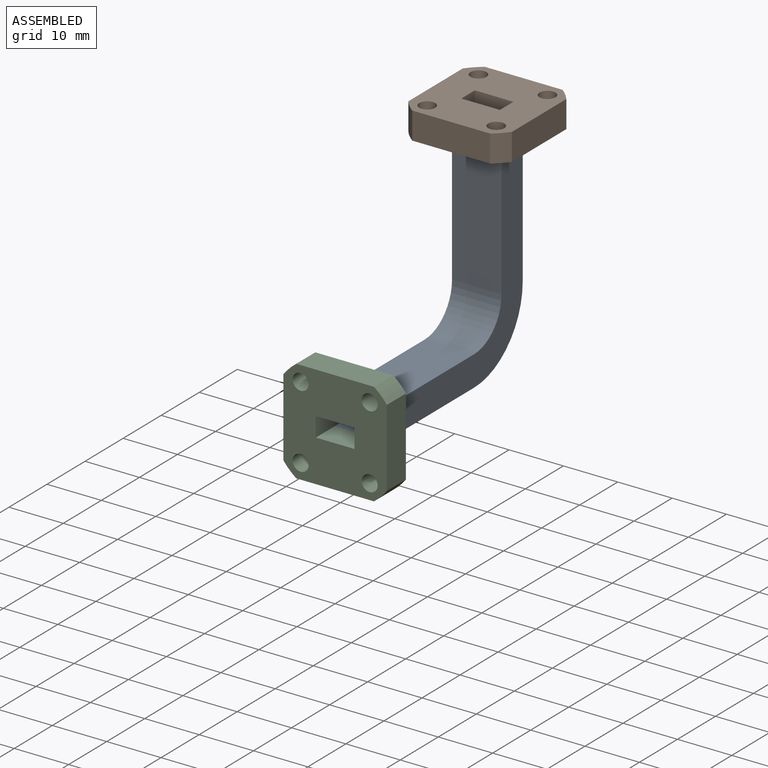
[diagram: assembled view]
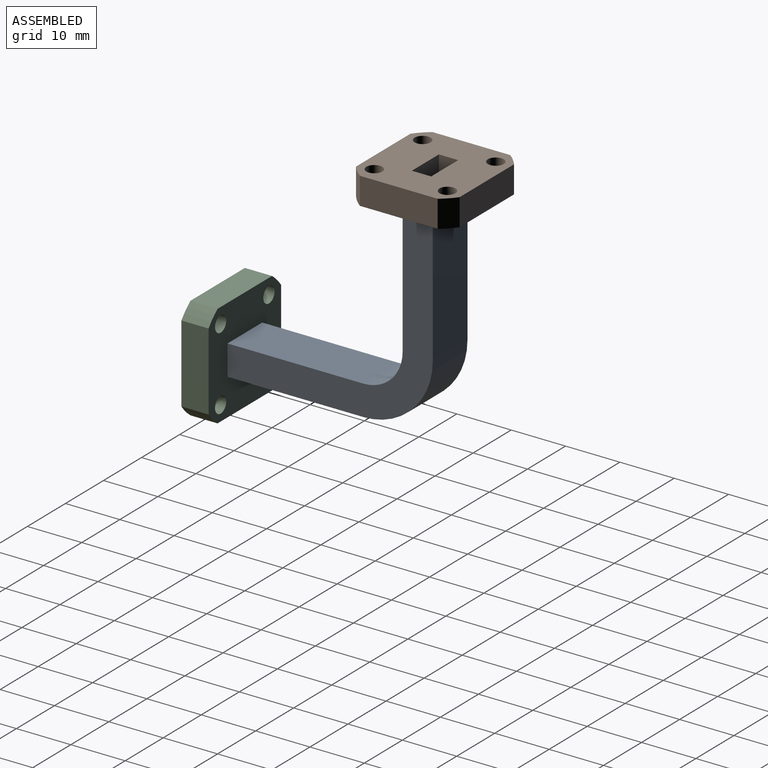
[diagram: assembled view, second angle]
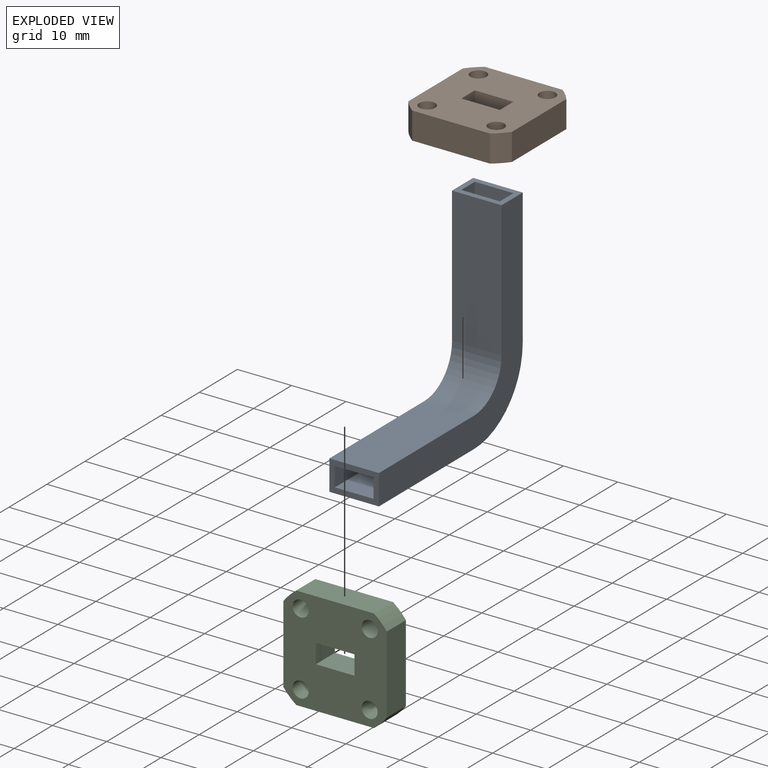
[diagram: exploded view]
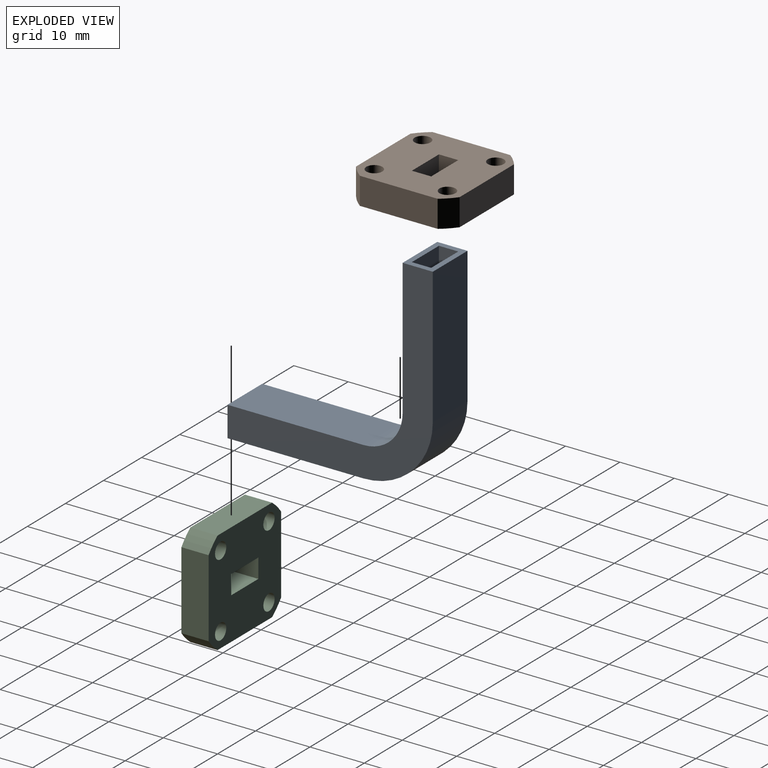
[diagram: exploded view, second angle]
ASSEMBLY  parts=3 mates=6
PART A: 18 faces, bbox 9.1x37.8x37.8 mm
  f0: plane 25x7.11mm, normal (0,0,1), area 177.8mm2, adj f2,f4,f6,f8
  f1: plane 25x7.11mm, normal (0,0,-1), area 177.8mm2, adj f3,f4,f6,f8
  f2: cylinder r=11.78mm len=11.78mm, axis (1,0,0), area 131.6mm2, adj f0,f4,f5,f6
  f3: cylinder r=8.22mm len=8.22mm, axis (1,0,0), area 91.9mm2, adj f1,f4,f6,f7
  f4: plane 36.78x36.78mm, normal (1,0,0), area 233.7mm2, adj f0,f1,f2,f3,f5,f7,f8,f9
  f5: plane 25x7.11mm, normal (0,-1,0), area 177.8mm2, adj f2,f4,f6,f9
  f6: plane 36.78x36.78mm, normal (-1,0,0), area 233.7mm2, adj f0,f1,f2,f3,f5,f7,f8,f9
  f7: plane 25x7.11mm, normal (0,1,0), area 177.8mm2, adj f3,f4,f6,f9
  f8: plane 9.11x5.56mm, normal (0,-1,0), area 25.3mm2, adj f0,f1,f4,f6,f10,f11,f12,f13
  f9: plane 9.11x5.56mm, normal (0,0,1), area 25.3mm2, adj f4,f5,f6,f7,f11,f13,f16,f17
  f10: plane 25x9.11mm, normal (0,0,1), area 227.8mm2, adj f8,f11,f13,f14
  f11: plane 37.78x37.78mm, normal (1,0,0), area 365.1mm2, adj f8,f9,f10,f12,f14,f15,f16,f17
  f12: plane 25x9.11mm, normal (0,0,-1), area 227.8mm2, adj f8,f11,f13,f15
  f13: plane 37.78x37.78mm, normal (-1,0,0), area 365.1mm2, adj f8,f9,f10,f12,f14,f15,f16,f17
  f14: cylinder r=7.22mm len=9.11mm, axis (1,0,0), area 103.4mm2, adj f10,f11,f13,f16
  f15: cylinder r=12.78mm len=12.78mm, axis (1,0,0), area 182.9mm2, adj f11,f12,f13,f17
  f16: plane 25x9.11mm, normal (0,-1,0), area 227.8mm2, adj f9,f11,f13,f14
  f17: plane 25x9.11mm, normal (0,1,0), area 227.8mm2, adj f9,f11,f13,f15
PART B: 18 faces, bbox 19.1x5x19.1 mm
  f0: plane 14.31x5mm, normal (0,0,-1), area 71.5mm2, adj f1,f15,f16,f17
  f1: cylinder r=11.91mm len=5mm, axis (0,-1,0), area 16.8mm2, adj f0,f2,f16,f17
  f2: plane 14.31x5mm, normal (1,0,0), area 71.5mm2, adj f1,f3,f16,f17
  f3: cylinder r=11.91mm len=5mm, axis (0,-1,0), area 16.8mm2, adj f2,f4,f16,f17
  f4: plane 14.31x5mm, normal (0,0,1), area 71.5mm2, adj f3,f5,f16,f17
  f5: cylinder r=11.91mm len=5mm, axis (0,-1,0), area 16.8mm2, adj f4,f6,f16,f17
  f6: plane 14.31x5mm, normal (-1,0,0), area 71.5mm2, adj f5,f15,f16,f17
  f7: plane 5x3.56mm, normal (-1,0,0), area 17.8mm2, adj f8,f14,f16,f17
  f8: plane 7.11x5mm, normal (0,0,1), area 35.6mm2, adj f7,f9,f16,f17
  f9: plane 5x3.56mm, normal (1,0,0), area 17.8mm2, adj f8,f14,f16,f17
  f10: cylinder r=1.47mm len=5mm, axis (0,-1,0), area 46.3mm2, adj f16,f17
  f11: cylinder r=1.47mm len=5mm, axis (0,-1,0), area 46.3mm2, adj f16,f17
  f12: cylinder r=1.47mm len=5mm, axis (0,-1,0), area 46.3mm2, adj f16,f17
  f13: cylinder r=1.47mm len=5mm, axis (0,-1,0), area 46.3mm2, adj f16,f17
  f14: plane 7.11x5mm, normal (0,0,-1), area 35.6mm2, adj f7,f9,f16,f17
  f15: cylinder r=11.91mm len=5mm, axis (0,-1,0), area 16.8mm2, adj f0,f6,f16,f17
  f16: plane 19.05x19.05mm, normal (0,1,0), area 300.1mm2, adj f0,f1,f2,f3,f4,f5,f6,f7
  f17: plane 19.05x19.05mm, normal (0,-1,0), area 300.1mm2, adj f0,f1,f2,f3,f4,f5,f6,f7
PART C: same geometry as B
PLACE A t=(-5.56,0.13,22.43)mm
PLACE B rot(axis=(1,0,0),90deg) t=(-5.56,35.13,57.43)mm
PLACE C t=(-5.56,-4.87,22.43)mm
MATE planar A.f0 <-> C.f8  axis (0,0,1) through (-5.56,0.13,20.65)mm
MATE planar A.f8 <-> C.f15  axis (0,-1,0) through (-9.12,0.13,24.21)mm
MATE planar A.f6 <-> B.f7  axis (-1,0,0) through (-2,25.71,31.84)mm
MATE planar A.f6 <-> C.f7  axis (-1,0,0) through (-2,25.71,31.84)mm
MATE planar A.f5 <-> B.f8  axis (0,-1,0) through (-5.56,36.9,57.43)mm
MATE planar B.f17 <-> A.f9  axis (0,0,-1) through (-9.12,33.35,57.43)mm
